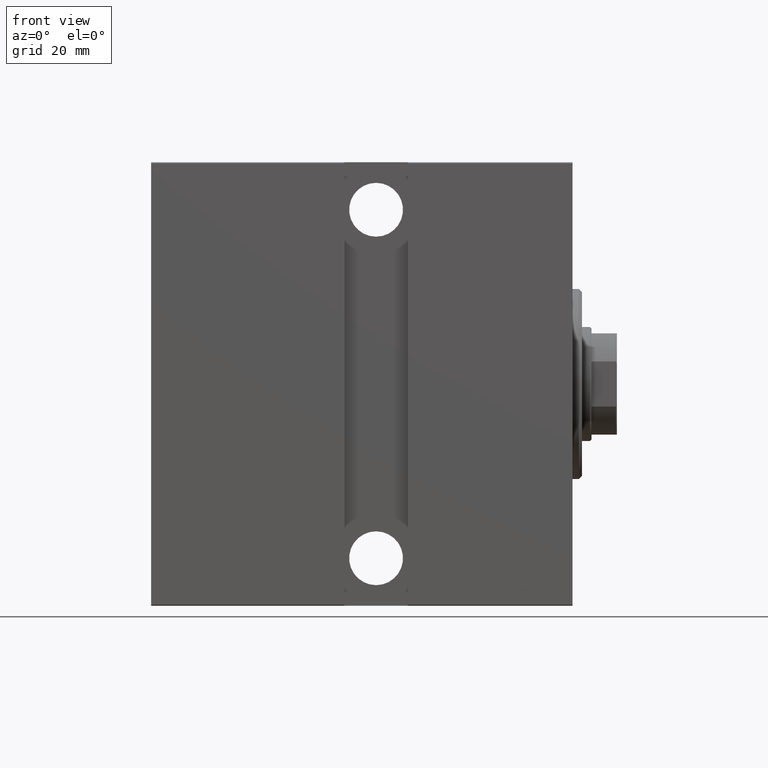
[diagram: clean part render]
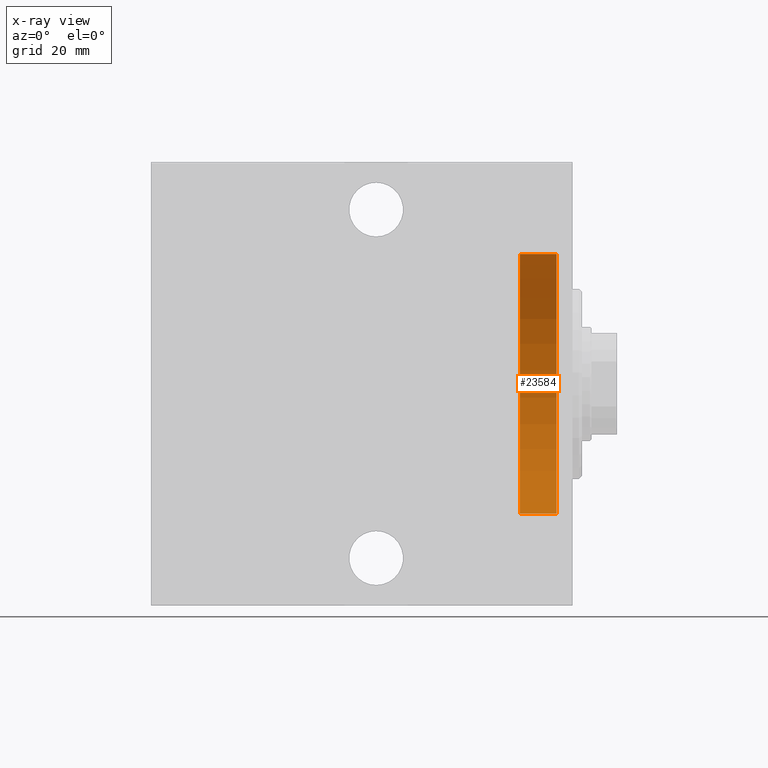
[diagram: x-ray — body ghosted, one internal face saturated and labeled with its STEP entity id]
A machine part, front view, then the same camera in x-ray: the body is ghosted and one INTERNAL B-rep face — a face not visible from any outside direction — is saturated and labeled: STEP entity #23584.
In plain terms, the highlighted cylindrical surface (partial cylindrical patch) has radius 41 mm, axis along (1, 0, 0).
Its self-contained STEP definition (entity closure, byte-faithful):
#152 = AXIS2_PLACEMENT_3D ( 'NONE', #36416, #6744, #40298 ) ;
#642 = VECTOR ( 'NONE', #34318, 1000.000000000000000 ) ;
#2215 = CARTESIAN_POINT ( 'NONE',  ( -5.000000000000000888, 0.000000000000000000, -41.00000000000000000 ) ) ;
#2897 = DIRECTION ( 'NONE',  ( 0.000000000000000000, 0.000000000000000000, -1.000000000000000000 ) ) ;
#4112 = ORIENTED_EDGE ( 'NONE', *, *, #37851, .F. ) ;
#4165 = CARTESIAN_POINT ( 'NONE',  ( -16.60000000000000142, 0.000000000000000000, -41.00000000000000000 ) ) ;
#4673 = AXIS2_PLACEMENT_3D ( 'NONE', #6837, #33261, #5987 ) ;
#5690 = ORIENTED_EDGE ( 'NONE', *, *, #7597, .F. ) ;
#5987 = DIRECTION ( 'NONE',  ( 0.000000000000000000, 0.000000000000000000, 1.000000000000000000 ) ) ;
#6744 = DIRECTION ( 'NONE',  ( 1.000000000000000000, -0.000000000000000000, -0.000000000000000000 ) ) ;
#6837 = CARTESIAN_POINT ( 'NONE',  ( -16.60000000000000142, 0.000000000000000000, 0.000000000000000000 ) ) ;
#7597 = EDGE_CURVE ( 'NONE', #16621, #42315, #12284, .T. ) ;
#7866 = EDGE_CURVE ( 'NONE', #29371, #39100, #15761, .T. ) ;
#10637 = FACE_OUTER_BOUND ( 'NONE', #29993, .T. ) ;
#12284 = CIRCLE ( 'NONE', #4673, 41.00000000000000000 ) ;
#15369 = VECTOR ( 'NONE', #19106, 1000.000000000000000 ) ;
#15761 = CIRCLE ( 'NONE', #42047, 41.00000000000000000 ) ;
#16621 = VERTEX_POINT ( 'NONE', #23842 ) ;
#17019 = CARTESIAN_POINT ( 'NONE',  ( -5.000000000000000888, 5.021051876504147385E-15, 41.00000000000000000 ) ) ;
#17326 = ORIENTED_EDGE ( 'NONE', *, *, #19711, .T. ) ;
#19106 = DIRECTION ( 'NONE',  ( 1.000000000000000000, -0.000000000000000000, -0.000000000000000000 ) ) ;
#19711 = EDGE_CURVE ( 'NONE', #16621, #29371, #34738, .T. ) ;
#21639 = ORIENTED_EDGE ( 'NONE', *, *, #7866, .T. ) ;
#23584 = ADVANCED_FACE ( 'NONE', ( #10637 ), #30337, .T. ) ;
#23842 = CARTESIAN_POINT ( 'NONE',  ( -16.60000000000000142, 5.021051876504147385E-15, 41.00000000000000000 ) ) ;
#29371 = VERTEX_POINT ( 'NONE', #17019 ) ;
#29993 = EDGE_LOOP ( 'NONE', ( #5690, #17326, #21639, #4112 ) ) ;
#30337 = CYLINDRICAL_SURFACE ( 'NONE', #152, 41.00000000000000000 ) ;
#30854 = LINE ( 'NONE', #41470, #642 ) ;
#32117 = CARTESIAN_POINT ( 'NONE',  ( -16.60000000000000142, 5.021051876504147385E-15, 41.00000000000000000 ) ) ;
#33261 = DIRECTION ( 'NONE',  ( -1.000000000000000000, 0.000000000000000000, 0.000000000000000000 ) ) ;
#34318 = DIRECTION ( 'NONE',  ( 1.000000000000000000, -0.000000000000000000, -0.000000000000000000 ) ) ;
#34738 = LINE ( 'NONE', #32117, #15369 ) ;
#36039 = CARTESIAN_POINT ( 'NONE',  ( -5.000000000000000888, 0.000000000000000000, 0.000000000000000000 ) ) ;
#36416 = CARTESIAN_POINT ( 'NONE',  ( -16.60000000000000142, 0.000000000000000000, 0.000000000000000000 ) ) ;
#37851 = EDGE_CURVE ( 'NONE', #42315, #39100, #30854, .T. ) ;
#39100 = VERTEX_POINT ( 'NONE', #2215 ) ;
#40298 = DIRECTION ( 'NONE',  ( 0.000000000000000000, 0.000000000000000000, -1.000000000000000000 ) ) ;
#41470 = CARTESIAN_POINT ( 'NONE',  ( -16.60000000000000142, 0.000000000000000000, -41.00000000000000000 ) ) ;
#42047 = AXIS2_PLACEMENT_3D ( 'NONE', #36039, #42099, #2897 ) ;
#42099 = DIRECTION ( 'NONE',  ( -1.000000000000000000, -0.000000000000000000, -0.000000000000000000 ) ) ;
#42315 = VERTEX_POINT ( 'NONE', #4165 ) ;